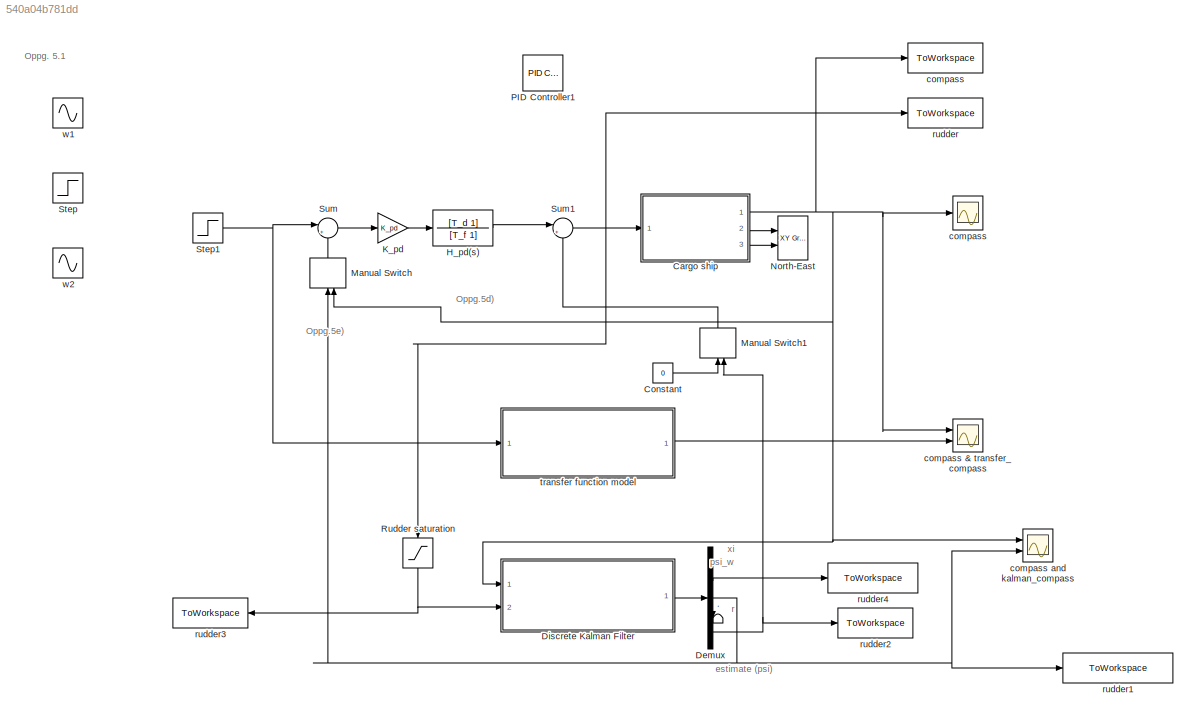
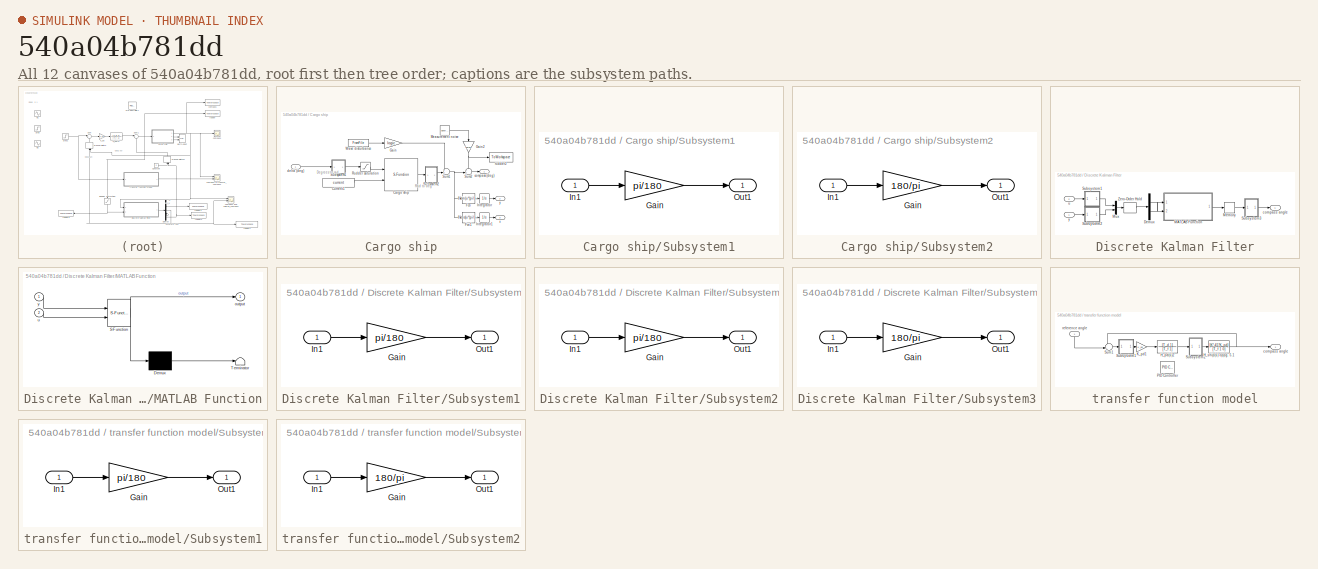
[diagram: thumbnail index - all 12 canvases of the model, root first then tree order]
MODEL slx_540a04b781dd
KIND model
CONFIG AbsTol = auto
CONFIG EnableMultiTasking = on
CONFIG FixedStep = auto
CONFIG MaxStep = auto
CONFIG MinStep = auto
CONFIG RelTol = 1e-3
CONFIG SampleTimeConstraint = Unconstrained
CONFIG Solver = ode45
CONFIG SolverName = ode45
CONFIG StartTime = 0.0
CONFIG StopTime = 1000
BLOCK [TransferFcn]  H_pd(s)
  Denominator = [T_f 1]
  Numerator = [T_d 1]
BLOCK [Terminator] .
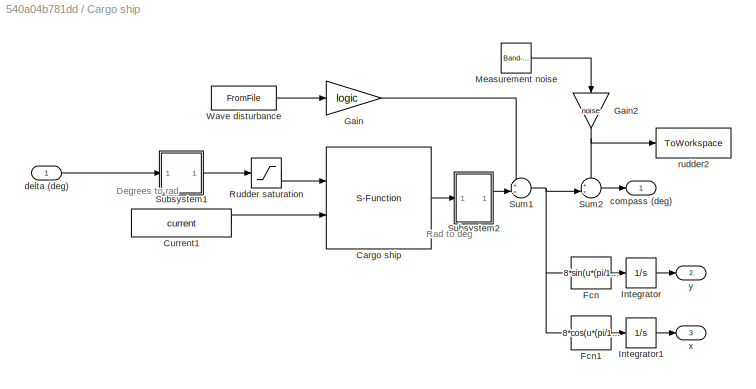
BLOCK [SubSystem] Cargo ship
  Ports = [1, 3]
  RequestExecContextInheritance = off
  Variant = off
BLOCK [S-Function] Cargo ship/Cargo ship
  EnableBusSupport = off
  FunctionName = Cargoship
  Ports = [2, 1]
  SFcnIsStateOwnerBlock = off
  SFunctionDeploymentMode = off
BLOCK [Constant] Cargo ship/Current1
  Value = current
BLOCK [Fcn] Cargo ship/Fcn
  Expr = 8*sin(u*(pi/180))
BLOCK [Fcn] Cargo ship/Fcn1
  Expr = 8*cos(u*(pi/180))
BLOCK [Gain] Cargo ship/Gain
  Gain = logic
BLOCK [Gain] Cargo ship/Gain2
  Gain = noise
BLOCK [Integrator] Cargo ship/Integrator
  Ports = [1, 1]
BLOCK [Integrator] Cargo ship/Integrator1
  Ports = [1, 1]
BLOCK [Reference] Cargo ship/Measurement noise  REF=simulink/Sources/Band-Limited
White Noise
  Ports = [0, 1]
  SourceBlock = simulink/Sources/Band-Limited\nWhite Noise
  SourceType = Band-Limited White Noise.
BLOCK [Saturate] Cargo ship/Rudder saturation
  InputPortMap = u0
  LowerLimit = -45*(pi/180)
  Ports = [1, 1]
  UpperLimit = 45*(pi/180)
BLOCK [SubSystem] Cargo ship/Subsystem1
  Ports = [1, 1]
  RequestExecContextInheritance = off
  Variant = off
BLOCK [Gain] Cargo ship/Subsystem1/Gain
  Gain = pi/180
BLOCK [Inport] Cargo ship/Subsystem1/In1
  IconDisplay = Port number
BLOCK [Outport] Cargo ship/Subsystem1/Out1
  IconDisplay = Port number
BLOCK [SubSystem] Cargo ship/Subsystem2
  Ports = [1, 1]
  RequestExecContextInheritance = off
  Variant = off
BLOCK [Gain] Cargo ship/Subsystem2/Gain
  Gain = 180/pi
BLOCK [Inport] Cargo ship/Subsystem2/In1
  IconDisplay = Port number
BLOCK [Outport] Cargo ship/Subsystem2/Out1
  IconDisplay = Port number
BLOCK [Sum] Cargo ship/Sum1
  IconShape = round
  InputSameDT = off
  Inputs = ++|
  OutDataTypeStr = Inherit: Inherit via internal rule
  Ports = [2, 1]
BLOCK [Sum] Cargo ship/Sum2
  IconShape = round
  InputSameDT = off
  Inputs = ++|
  OutDataTypeStr = Inherit: Inherit via internal rule
  Ports = [2, 1]
BLOCK [FromFile] Cargo ship/Wave disturbance
  FileName = wave.mat
  SampleTime = 0
BLOCK [Outport] Cargo ship/compass (deg)
  IconDisplay = Port number
BLOCK [Inport] Cargo ship/delta (deg)
  IconDisplay = Port number
BLOCK [ToWorkspace] Cargo ship/rudder2
  FixptAsFi = on
  MaxDataPoints = inf
  Ports = [1]
  SampleTime = -1
  Save2DSignal = 3-D array (concatenate along third dimension)
  SaveFormat = Timeseries
  VariableName = measurement_noise
BLOCK [Outport] Cargo ship/x
  IconDisplay = Port number
  Port = 3
BLOCK [Outport] Cargo ship/y
  IconDisplay = Port number
  Port = 2
BLOCK [Constant] Constant
  Value = 0
BLOCK [Demux] Demux
  DisplayOption = bar
  Outputs = 5
  Ports = [1, 5]
BLOCK [SubSystem] Discrete Kalman Filter
  Ports = [2, 1]
  RequestExecContextInheritance = off
  Variant = off
BLOCK [Demux] Discrete Kalman Filter/Demux
  DisplayOption = bar
  Outputs = 2
  Ports = [1, 2]
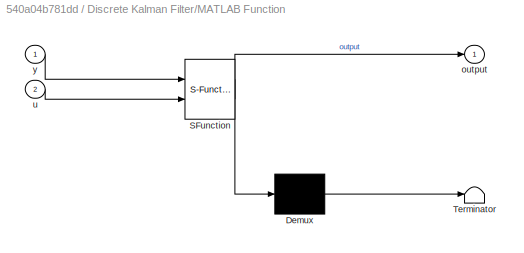
BLOCK [SubSystem] Discrete Kalman Filter/MATLAB Function
  ErrorFcn = Stateflow.Translate.translate
  PermitHierarchicalResolution = ExplicitOnly
  Ports = [2, 1]
  RequestExecContextInheritance = off
  SFBlockType = MATLAB Function
  TreatAsAtomicUnit = on
  Variant = off
BLOCK [Demux] Discrete Kalman Filter/MATLAB Function/ Demux 
  Outputs = 1
  Ports = [1, 1]
BLOCK [S-Function] Discrete Kalman Filter/MATLAB Function/ SFunction 
  EnableBusSupport = on
  FunctionName = sf_sfun
  Parameters = model_struct
  PortCounts = [2 2]
  Ports = [2, 2]
  SFcnIsStateOwnerBlock = off
  SFunctionDeploymentMode = off
  Tag = Stateflow S-Function shipp 2
BLOCK [Terminator] Discrete Kalman Filter/MATLAB Function/ Terminator 
BLOCK [Outport] Discrete Kalman Filter/MATLAB Function/output
  IconDisplay = Port number
BLOCK [Inport] Discrete Kalman Filter/MATLAB Function/u
  IconDisplay = Port number
  Port = 2
BLOCK [Inport] Discrete Kalman Filter/MATLAB Function/y
  IconDisplay = Port number
BLOCK [Memory] Discrete Kalman Filter/Memory
BLOCK [Mux] Discrete Kalman Filter/Mux
  DisplayOption = bar
  Inputs = 2
  Ports = [2, 1]
BLOCK [SubSystem] Discrete Kalman Filter/Subsystem1
  Ports = [1, 1]
  RequestExecContextInheritance = off
  Variant = off
BLOCK [Gain] Discrete Kalman Filter/Subsystem1/Gain
  Gain = pi/180
BLOCK [Inport] Discrete Kalman Filter/Subsystem1/In1
  IconDisplay = Port number
BLOCK [Outport] Discrete Kalman Filter/Subsystem1/Out1
  IconDisplay = Port number
BLOCK [SubSystem] Discrete Kalman Filter/Subsystem2
  Ports = [1, 1]
  RequestExecContextInheritance = off
  Variant = off
BLOCK [Gain] Discrete Kalman Filter/Subsystem2/Gain
  Gain = pi/180
BLOCK [Inport] Discrete Kalman Filter/Subsystem2/In1
  IconDisplay = Port number
BLOCK [Outport] Discrete Kalman Filter/Subsystem2/Out1
  IconDisplay = Port number
BLOCK [SubSystem] Discrete Kalman Filter/Subsystem3
  Ports = [1, 1]
  RequestExecContextInheritance = off
  Variant = off
BLOCK [Gain] Discrete Kalman Filter/Subsystem3/Gain
  Gain = 180/pi
BLOCK [Inport] Discrete Kalman Filter/Subsystem3/In1
  IconDisplay = Port number
BLOCK [Outport] Discrete Kalman Filter/Subsystem3/Out1
  IconDisplay = Port number
BLOCK [ZeroOrderHold] Discrete Kalman Filter/Zero-Order Hold
  SampleTime = 0.1
BLOCK [Outport] Discrete Kalman Filter/compass angle
  IconDisplay = Port number
BLOCK [Inport] Discrete Kalman Filter/u
  IconDisplay = Port number
  Port = 2
BLOCK [Inport] Discrete Kalman Filter/y
  IconDisplay = Port number
BLOCK [Gain] K_pd
  Gain = K_pd
  OutDataTypeStr = Inherit: Inherit via internal rule
  ParamDataTypeStr = Inherit: Inherit via internal rule
  SaturateOnIntegerOverflow = off
BLOCK [ManualSwitch] Manual Switch
BLOCK [ManualSwitch] Manual Switch1
BLOCK [Reference] North-East  REF=simulink/Sinks/XY Graph
  Ports = [2]
  SourceBlock = simulink/Sinks/XY Graph
  SourceType = XY scope.
BLOCK [Reference] PID Controller1  REF=simulink/Continuous/PID Controller
  Commented = on
  Ports = [1, 1]
  SourceBlock = simulink/Continuous/PID Controller
  SourceType = PID 1dof
BLOCK [Saturate] Rudder saturation
  InputPortMap = u0
  LowerLimit = -45
  Ports = [1, 1]
  UpperLimit = 45
BLOCK [Step] Step
  Commented = on
  SampleTime = 0
BLOCK [Step] Step1
  After = phi
  SampleTime = 0
  Time = 0
BLOCK [Sum] Sum
  IconShape = round
  InputSameDT = off
  Inputs = |+-
  OutDataTypeStr = Inherit: Inherit via internal rule
  Ports = [2, 1]
  SaturateOnIntegerOverflow = off
BLOCK [Sum] Sum1
  IconShape = round
  InputSameDT = off
  Inputs = |++
  OutDataTypeStr = Inherit: Inherit via internal rule
  Ports = [2, 1]
  SaturateOnIntegerOverflow = off
BLOCK [ToWorkspace] compass
  FixptAsFi = on
  MaxDataPoints = inf
  Ports = [1]
  SampleTime = -1
  Save2DSignal = 3-D array (concatenate along third dimension)
  SaveFormat = Timeseries
  VariableName = compass
BLOCK [Scope] compass 
  NumInputPorts = 1
  Ports = [1]
  ScopeSpecificationString = Simulink.scopes.TimeScopeBlockCfg('CurrentConfiguration', extmgr.ConfigurationSet(extmgr.Configuration('Core','General UI',true),extmgr.Configuration('Core','Source UI',true),extmgr.Configuration('Sources','WiredSimulink',true,'DataLoggingSaveFormat','StructureWithTime','DataLoggingLimitDataPoints',true,'DataLoggingDecimation','1','DataLoggingDecimateData',true),extmgr.Configuration('Visuals','Tim...<+1694ch>
BLOCK [Scope] compass & transfer_compass
  NumInputPorts = 2
  Ports = [2]
  ScopeSpecificationString = Simulink.scopes.TimeScopeBlockCfg('CurrentConfiguration', extmgr.ConfigurationSet(extmgr.Configuration('Core','General UI',true),extmgr.Configuration('Core','Source UI',true),extmgr.Configuration('Sources','WiredSimulink',true,'DataLoggingVariableName','ScopeData1'),extmgr.Configuration('Visuals','Time Domain',true,'SerializedDisplays',{struct('MinYLimReal','-3.76648','MaxYLimReal','33.89833','YLa...<+1452ch>
BLOCK [Scope] compass and kalman_compass
  NumInputPorts = 2
  Ports = [2]
  ScopeSpecificationString = Simulink.scopes.TimeScopeBlockCfg('CurrentConfiguration', extmgr.ConfigurationSet(extmgr.Configuration('Core','General UI',true),extmgr.Configuration('Core','Source UI',true),extmgr.Configuration('Sources','WiredSimulink',true,'DataLoggingVariableName','ScopeData1','DataLoggingLimitDataPoints',true,'DataLoggingSaveFormat','Array','DataLoggingDecimation','1','DataLoggingDecimateData',true,'DataLogg...<+1585ch>
BLOCK [ToWorkspace] rudder
  FixptAsFi = on
  MaxDataPoints = inf
  Ports = [1]
  SampleTime = -1
  Save2DSignal = 3-D array (concatenate along third dimension)
  SaveFormat = Timeseries
  VariableName = rudder
BLOCK [ToWorkspace] rudder1
  FixptAsFi = on
  MaxDataPoints = inf
  Ports = [1]
  SampleTime = -1
  Save2DSignal = 3-D array (concatenate along third dimension)
  SaveFormat = Timeseries
  VariableName = kalman_estimate
BLOCK [ToWorkspace] rudder2
  FixptAsFi = on
  MaxDataPoints = inf
  Ports = [1]
  SampleTime = -1
  Save2DSignal = 3-D array (concatenate along third dimension)
  SaveFormat = Timeseries
  VariableName = kalman_bias
BLOCK [ToWorkspace] rudder3
  FixptAsFi = on
  MaxDataPoints = inf
  Ports = [1]
  SampleTime = -1
  Save2DSignal = 3-D array (concatenate along third dimension)
  SaveFormat = Timeseries
  VariableName = kalman_rudder
BLOCK [ToWorkspace] rudder4
  FixptAsFi = on
  MaxDataPoints = inf
  Ports = [1]
  SampleTime = -1
  Save2DSignal = 3-D array (concatenate along third dimension)
  SaveFormat = Timeseries
  VariableName = estimated_wave
BLOCK [SubSystem] transfer function model
  Ports = [1, 1]
  RequestExecContextInheritance = off
  Variant = off
BLOCK [TransferFcn] transfer function model/ H_pd(s)2
  Denominator = [T_f 1]
  Numerator = [T_d 1]
BLOCK [TransferFcn] transfer function model/H_ship(s) oppg. 5.1
  Denominator = [T_f 1 0]
  Numerator = [K*.45*K_pd]
BLOCK [Gain] transfer function model/K_pd1
  Gain = K_pd
  OutDataTypeStr = Inherit: Inherit via internal rule
  ParamDataTypeStr = Inherit: Inherit via internal rule
  SaturateOnIntegerOverflow = off
BLOCK [Reference] transfer function model/PID Controller  REF=simulink/Continuous/PID Controller
  Commented = on
  Ports = [1, 1]
  SourceBlock = simulink/Continuous/PID Controller
  SourceType = PID 1dof
BLOCK [SubSystem] transfer function model/Subsystem1
  Ports = [1, 1]
  RequestExecContextInheritance = off
  Variant = off
BLOCK [Gain] transfer function model/Subsystem1/Gain
  Gain = pi/180
BLOCK [Inport] transfer function model/Subsystem1/In1
  IconDisplay = Port number
BLOCK [Outport] transfer function model/Subsystem1/Out1
  IconDisplay = Port number
BLOCK [SubSystem] transfer function model/Subsystem2
  Ports = [1, 1]
  RequestExecContextInheritance = off
  Variant = off
BLOCK [Gain] transfer function model/Subsystem2/Gain
  Gain = 180/pi
BLOCK [Inport] transfer function model/Subsystem2/In1
  IconDisplay = Port number
BLOCK [Outport] transfer function model/Subsystem2/Out1
  IconDisplay = Port number
BLOCK [Sum] transfer function model/Sum1
  IconShape = round
  InputSameDT = off
  Inputs = -+|
  OutDataTypeStr = Inherit: Inherit via internal rule
  Ports = [2, 1]
  SaturateOnIntegerOverflow = off
BLOCK [Outport] transfer function model/compass angle
  IconDisplay = Port number
BLOCK [Inport] transfer function model/reference angle
  IconDisplay = Port number
BLOCK [Sin] w1 
  Commented = on
  Frequency = 0.005
  Ports = [0, 1]
  SampleTime = 0
BLOCK [Sin] w2
  Commented = on
  Frequency = 0.05
  Ports = [0, 1]
  SampleTime = 0
ANNOTATION (root): Oppg. 5.1
ANNOTATION (root): Oppg.5d)
ANNOTATION (root): Oppg.5e)
ANNOTATION (root): estimate (psi)
ANNOTATION (root): psi_w
ANNOTATION (root): r
ANNOTATION (root): xi
ANNOTATION Cargo ship: Degrees to rad
ANNOTATION Cargo ship: Rad to deg
LINE  H_pd(s):1 -> Sum1:1
LINE Cargo ship/Cargo ship:1 -> Cargo ship/Subsystem2:1
LINE Cargo ship/Current1:1 -> Cargo ship/Cargo ship:2
LINE Cargo ship/Fcn1:1 -> Cargo ship/Integrator1:1
LINE Cargo ship/Fcn:1 -> Cargo ship/Integrator:1
NET Cargo ship/Gain2:1 -> Cargo ship/Sum2:1, Cargo ship/rudder2:1
LINE Cargo ship/Gain:1 -> Cargo ship/Sum1:1
LINE Cargo ship/Integrator1:1 -> Cargo ship/x:1
LINE Cargo ship/Integrator:1 -> Cargo ship/y:1
LINE Cargo ship/Measurement noise:1 -> Cargo ship/Gain2:1
LINE Cargo ship/Rudder saturation:1 -> Cargo ship/Cargo ship:1
LINE Cargo ship/Subsystem1/Gain:1 -> Cargo ship/Subsystem1/Out1:1
LINE Cargo ship/Subsystem1/In1:1 -> Cargo ship/Subsystem1/Gain:1
LINE Cargo ship/Subsystem1:1 -> Cargo ship/Rudder saturation:1
LINE Cargo ship/Subsystem2/Gain:1 -> Cargo ship/Subsystem2/Out1:1
LINE Cargo ship/Subsystem2/In1:1 -> Cargo ship/Subsystem2/Gain:1
LINE Cargo ship/Subsystem2:1 -> Cargo ship/Sum1:2
NET Cargo ship/Sum1:1 -> Cargo ship/Fcn1:1, Cargo ship/Fcn:1, Cargo ship/Sum2:2
LINE Cargo ship/Sum2:1 -> Cargo ship/compass (deg):1
LINE Cargo ship/Wave disturbance:1 -> Cargo ship/Gain:1
LINE Cargo ship/delta (deg):1 -> Cargo ship/Subsystem1:1
NET Cargo ship:1 -> Discrete Kalman Filter:1, Manual Switch:2, compass & transfer_compass:1, compass :1, compass and kalman_compass:1, compass:1
LINE Cargo ship:2 -> North-East:1
LINE Cargo ship:3 -> North-East:2
LINE Constant:1 -> Manual Switch1:1
LINE Demux:2 -> rudder4:1
NET Demux:3 -> Manual Switch:1, compass and kalman_compass:2, rudder1:1
LINE Demux:4 -> .:1
NET Demux:5 -> Manual Switch1:2, rudder2:1
LINE Discrete Kalman Filter/Demux:1 -> Discrete Kalman Filter/MATLAB Function:2
LINE Discrete Kalman Filter/Demux:2 -> Discrete Kalman Filter/MATLAB Function:1
LINE Discrete Kalman Filter/MATLAB Function:1 -> Discrete Kalman Filter/Memory:1
LINE Discrete Kalman Filter/Memory:1 -> Discrete Kalman Filter/Subsystem3:1
LINE Discrete Kalman Filter/Mux:1 -> Discrete Kalman Filter/Zero-Order Hold:1
LINE Discrete Kalman Filter/Subsystem1/Gain:1 -> Discrete Kalman Filter/Subsystem1/Out1:1
LINE Discrete Kalman Filter/Subsystem1/In1:1 -> Discrete Kalman Filter/Subsystem1/Gain:1
LINE Discrete Kalman Filter/Subsystem1:1 -> Discrete Kalman Filter/Mux:1
LINE Discrete Kalman Filter/Subsystem2/Gain:1 -> Discrete Kalman Filter/Subsystem2/Out1:1
LINE Discrete Kalman Filter/Subsystem2/In1:1 -> Discrete Kalman Filter/Subsystem2/Gain:1
LINE Discrete Kalman Filter/Subsystem2:1 -> Discrete Kalman Filter/Mux:2
LINE Discrete Kalman Filter/Subsystem3/Gain:1 -> Discrete Kalman Filter/Subsystem3/Out1:1
LINE Discrete Kalman Filter/Subsystem3/In1:1 -> Discrete Kalman Filter/Subsystem3/Gain:1
LINE Discrete Kalman Filter/Subsystem3:1 -> Discrete Kalman Filter/compass angle:1
LINE Discrete Kalman Filter/Zero-Order Hold:1 -> Discrete Kalman Filter/Demux:1
LINE Discrete Kalman Filter/u:1 -> Discrete Kalman Filter/Subsystem1:1
LINE Discrete Kalman Filter/y:1 -> Discrete Kalman Filter/Subsystem2:1
LINE Discrete Kalman Filter:1 -> Demux:1
LINE K_pd:1 ->  H_pd(s):1
LINE Manual Switch1:1 -> Sum1:2
LINE Manual Switch:1 -> Sum:2
NET Rudder saturation:1 -> Discrete Kalman Filter:2, rudder3:1
NET Step1:1 -> Sum:1, transfer function model:1
NET Sum1:1 -> Cargo ship:1, Rudder saturation:1, rudder:1
LINE Sum:1 -> K_pd:1
LINE transfer function model/ H_pd(s)2:1 -> transfer function model/Subsystem2:1
NET transfer function model/H_ship(s) oppg. 5.1:1 -> transfer function model/Sum1:1, transfer function model/compass angle:1
LINE transfer function model/K_pd1:1 -> transfer function model/ H_pd(s)2:1
LINE transfer function model/Subsystem1/Gain:1 -> transfer function model/Subsystem1/Out1:1
LINE transfer function model/Subsystem1/In1:1 -> transfer function model/Subsystem1/Gain:1
LINE transfer function model/Subsystem1:1 -> transfer function model/K_pd1:1
LINE transfer function model/Subsystem2/Gain:1 -> transfer function model/Subsystem2/Out1:1
LINE transfer function model/Subsystem2/In1:1 -> transfer function model/Subsystem2/Gain:1
LINE transfer function model/Subsystem2:1 -> transfer function model/H_ship(s) oppg. 5.1:1
LINE transfer function model/Sum1:1 -> transfer function model/Subsystem1:1
LINE transfer function model/reference angle:1 -> transfer function model/Sum1:2
LINE transfer function model:1 -> compass & transfer_compass:2
note: NET lines group one-source signal fan-out (src -> all destinations, sorted); 1:1 wires keep LINE
CHART Discrete Kalman Filter/MATLAB Function states=1 transitions=1
  STATE_LABEL 'eML_blk_kernel()'
  STATE_LABEL 'SCRIPT:\nfunction output = DiscreteKalman( y, u, model_struct)\n%DISCRETEKALMAN \n%   - MATLAB function implementation of a discrete Kalman filter -\n\npersistent init_flag P_pri x_est_pri\nAd = model_struct.Ad;\nBd = model_struct.Bd;\nEd = model_struct.Ed;\nCd = model_struct.Cd;\nQ = model_struct.Q;\nR = model_struct.R;\nI = model_struct.I;\n\nif isempty(init_flag)\n    init_flag = 1;\n    x_0_est_pri = [0;0;0;0...<+561ch>'
